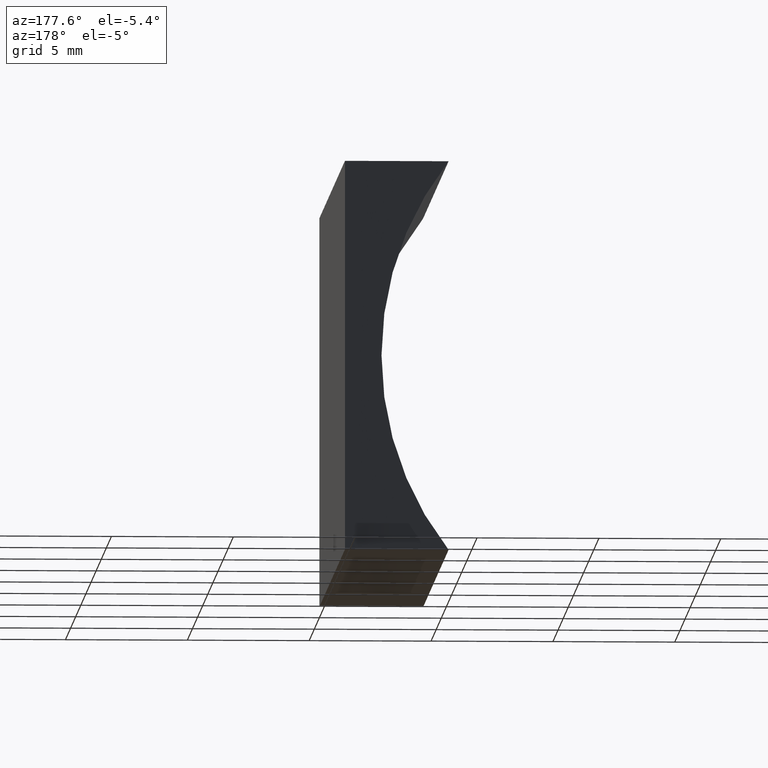
[diagram: clean part render]
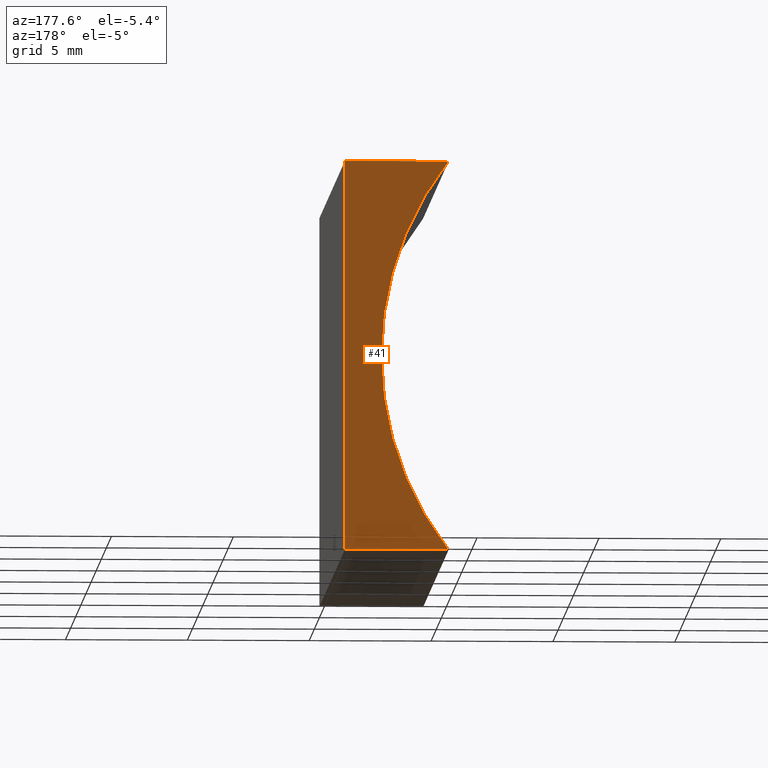
[diagram: same view with one face highlighted and labeled with its STEP entity id]
A machine part, auxiliary view. The second image highlights one B-rep face of the part: STEP entity #41.
In plain terms, the highlighted planar face has unit normal (0, 1, 0).
Its self-contained STEP definition (entity closure, byte-faithful):
#9 = VERTEX_POINT ( 'NONE', #13 ) ;
#10 = VECTOR ( 'NONE', #101, 1000.000000000000000 ) ;
#11 = AXIS2_PLACEMENT_3D ( 'NONE', #28, #107, #153 ) ;
#13 = CARTESIAN_POINT ( 'NONE',  ( 0.0000000000000000000, 25.00000000000000000, 0.0000000000000000000 ) ) ;
#18 = EDGE_CURVE ( 'NONE', #93, #155, #96, .T. ) ;
#28 = CARTESIAN_POINT ( 'NONE',  ( -14.49999999999999800, 25.00000000000000000, 8.000000000000003600 ) ) ;
#33 = EDGE_LOOP ( 'NONE', ( #138, #161, #201, #47 ) ) ;
#36 = VERTEX_POINT ( 'NONE', #88 ) ;
#41 = ADVANCED_FACE ( 'NONE', ( #109 ), #191, .T. ) ;
#46 = EDGE_CURVE ( 'NONE', #155, #36, #108, .T. ) ;
#47 = ORIENTED_EDGE ( 'NONE', *, *, #171, .T. ) ;
#48 = VECTOR ( 'NONE', #133, 1000.000000000000000 ) ;
#66 = LINE ( 'NONE', #144, #10 ) ;
#76 = DIRECTION ( 'NONE',  ( -0.0000000000000000000, -1.000000000000000000, -0.0000000000000000000 ) ) ;
#88 = CARTESIAN_POINT ( 'NONE',  ( 9.797174393178825700E-016, 25.00000000000000000, 16.00000000000000000 ) ) ;
#93 = VERTEX_POINT ( 'NONE', #131 ) ;
#96 = CIRCLE ( 'NONE', #139, 13.00000000000000200 ) ;
#98 = CARTESIAN_POINT ( 'NONE',  ( 0.0000000000000000000, 25.00000000000000000, 0.0000000000000000000 ) ) ;
#99 = VECTOR ( 'NONE', #164, 1000.000000000000000 ) ;
#101 = DIRECTION ( 'NONE',  ( -6.123233995736766000E-017, -0.0000000000000000000, -1.000000000000000000 ) ) ;
#106 = LINE ( 'NONE', #98, #48 ) ;
#107 = DIRECTION ( 'NONE',  ( 0.0000000000000000000, 1.000000000000000000, 0.0000000000000000000 ) ) ;
#108 = LINE ( 'NONE', #160, #99 ) ;
#109 = FACE_OUTER_BOUND ( 'NONE', #33, .T. ) ;
#124 = CARTESIAN_POINT ( 'NONE',  ( -14.49999999999999800, 25.00000000000000000, 8.000000000000003600 ) ) ;
#128 = CARTESIAN_POINT ( 'NONE',  ( -4.253049234040399400, 25.00000000000000000, 16.00000000000000000 ) ) ;
#131 = CARTESIAN_POINT ( 'NONE',  ( -4.253049234040400300, 25.00000000000000000, 1.734723475976807100E-015 ) ) ;
#133 = DIRECTION ( 'NONE',  ( -1.000000000000000000, 0.0000000000000000000, 0.0000000000000000000 ) ) ;
#137 = EDGE_CURVE ( 'NONE', #9, #93, #106, .T. ) ;
#138 = ORIENTED_EDGE ( 'NONE', *, *, #137, .T. ) ;
#139 = AXIS2_PLACEMENT_3D ( 'NONE', #124, #76, #185 ) ;
#144 = CARTESIAN_POINT ( 'NONE',  ( 0.0000000000000000000, 25.00000000000000000, 0.0000000000000000000 ) ) ;
#153 = DIRECTION ( 'NONE',  ( 0.0000000000000000000, -0.0000000000000000000, 1.000000000000000000 ) ) ;
#155 = VERTEX_POINT ( 'NONE', #128 ) ;
#160 = CARTESIAN_POINT ( 'NONE',  ( 9.797174393178825700E-016, 25.00000000000000000, 16.00000000000000000 ) ) ;
#161 = ORIENTED_EDGE ( 'NONE', *, *, #18, .T. ) ;
#164 = DIRECTION ( 'NONE',  ( 1.000000000000000000, -0.0000000000000000000, -0.0000000000000000000 ) ) ;
#171 = EDGE_CURVE ( 'NONE', #36, #9, #66, .T. ) ;
#185 = DIRECTION ( 'NONE',  ( 0.0000000000000000000, 0.0000000000000000000, 1.000000000000000000 ) ) ;
#191 = PLANE ( 'NONE',  #11 ) ;
#201 = ORIENTED_EDGE ( 'NONE', *, *, #46, .T. ) ;